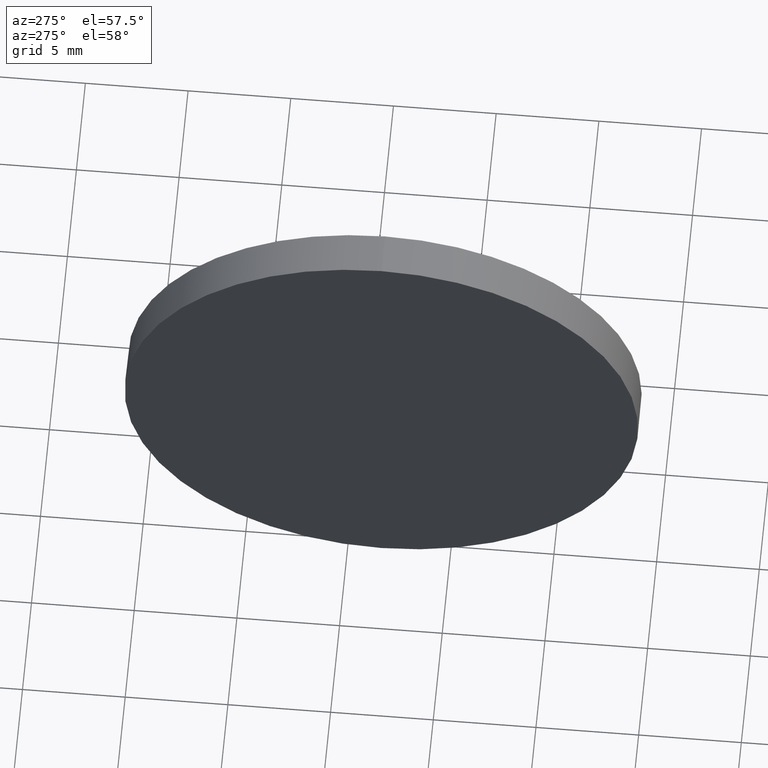
[diagram: clean part render]
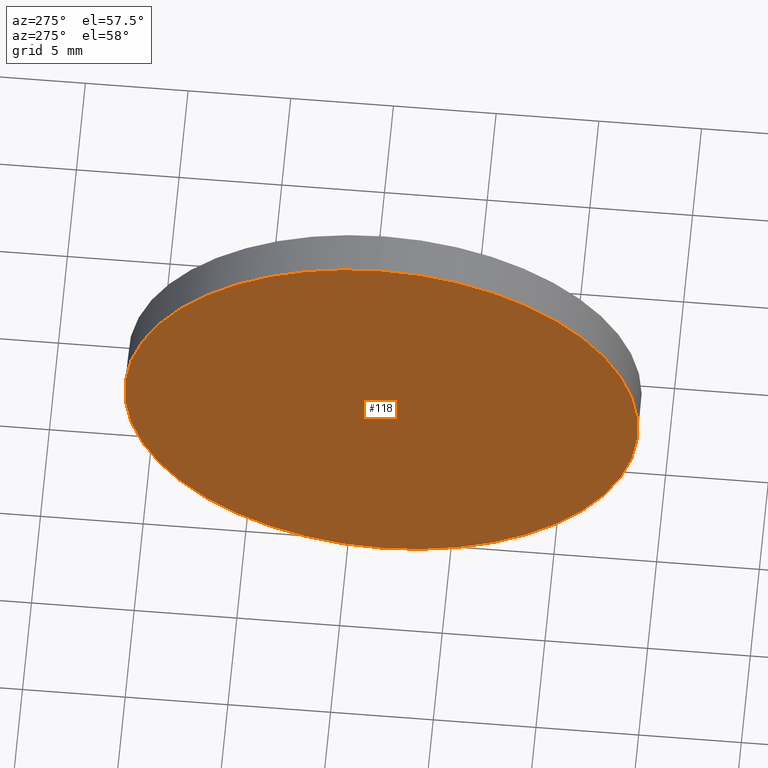
[diagram: same view with one face highlighted and labeled with its STEP entity id]
A machine part, auxiliary view. The second image highlights one B-rep face of the part: STEP entity #118.
In plain terms, the highlighted planar face has unit normal (1, 0, 0).
Its self-contained STEP definition (entity closure, byte-faithful):
#2 = DIRECTION ( 'NONE',  ( -1.000000000000000000, -0.0000000000000000000, -0.0000000000000000000 ) ) ;
#7 = DIRECTION ( 'NONE',  ( 0.0000000000000000000, 0.0000000000000000000, -1.000000000000000000 ) ) ;
#24 = CIRCLE ( 'NONE', #177, 12.49999999999999600 ) ;
#30 = DIRECTION ( 'NONE',  ( 0.0000000000000000000, 0.0000000000000000000, 1.000000000000000000 ) ) ;
#31 = DIRECTION ( 'NONE',  ( -1.000000000000000000, -0.0000000000000000000, -0.0000000000000000000 ) ) ;
#37 = EDGE_CURVE ( 'NONE', #133, #82, #153, .T. ) ;
#52 = CARTESIAN_POINT ( 'NONE',  ( 479.2856830455023700, 78.34035694524027300, -12.49999999999999600 ) ) ;
#53 = CARTESIAN_POINT ( 'NONE',  ( 479.2856830455023700, 78.34035694524027300, 0.0000000000000000000 ) ) ;
#54 = CARTESIAN_POINT ( 'NONE',  ( 479.2856830455023700, 78.34035694524027300, 12.49999999999999600 ) ) ;
#72 = DIRECTION ( 'NONE',  ( 1.000000000000000000, 0.0000000000000000000, 0.0000000000000000000 ) ) ;
#78 = ORIENTED_EDGE ( 'NONE', *, *, #37, .T. ) ;
#79 = FACE_OUTER_BOUND ( 'NONE', #95, .T. ) ;
#82 = VERTEX_POINT ( 'NONE', #54 ) ;
#91 = ORIENTED_EDGE ( 'NONE', *, *, #134, .T. ) ;
#95 = EDGE_LOOP ( 'NONE', ( #91, #78 ) ) ;
#109 = PLANE ( 'NONE',  #167 ) ;
#118 = ADVANCED_FACE ( 'NONE', ( #79 ), #109, .F. ) ;
#133 = VERTEX_POINT ( 'NONE', #52 ) ;
#134 = EDGE_CURVE ( 'NONE', #82, #133, #24, .T. ) ;
#142 = CARTESIAN_POINT ( 'NONE',  ( 479.2856830455023700, 78.34035694524027300, 0.0000000000000000000 ) ) ;
#153 = CIRCLE ( 'NONE', #183, 12.49999999999999600 ) ;
#156 = DIRECTION ( 'NONE',  ( 0.0000000000000000000, 0.0000000000000000000, 1.000000000000000000 ) ) ;
#161 = CARTESIAN_POINT ( 'NONE',  ( 479.2856830455023700, 78.34035694524027300, 0.0000000000000000000 ) ) ;
#167 = AXIS2_PLACEMENT_3D ( 'NONE', #53, #72, #7 ) ;
#177 = AXIS2_PLACEMENT_3D ( 'NONE', #161, #31, #30 ) ;
#183 = AXIS2_PLACEMENT_3D ( 'NONE', #142, #2, #156 ) ;